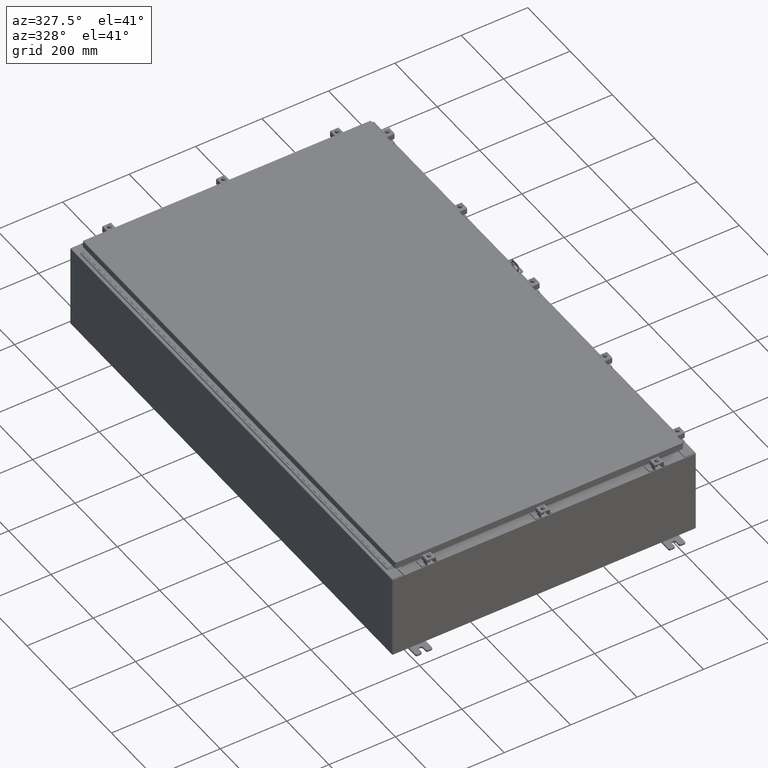
[diagram: clean part render]
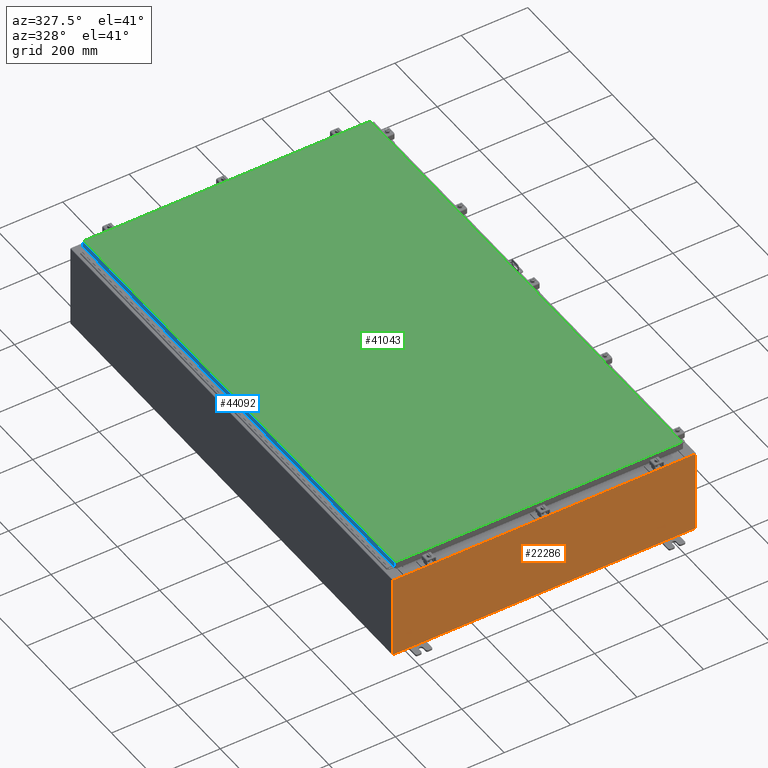
[diagram: same view with three faces highlighted in distinct colors, each labeled with its STEP entity id]
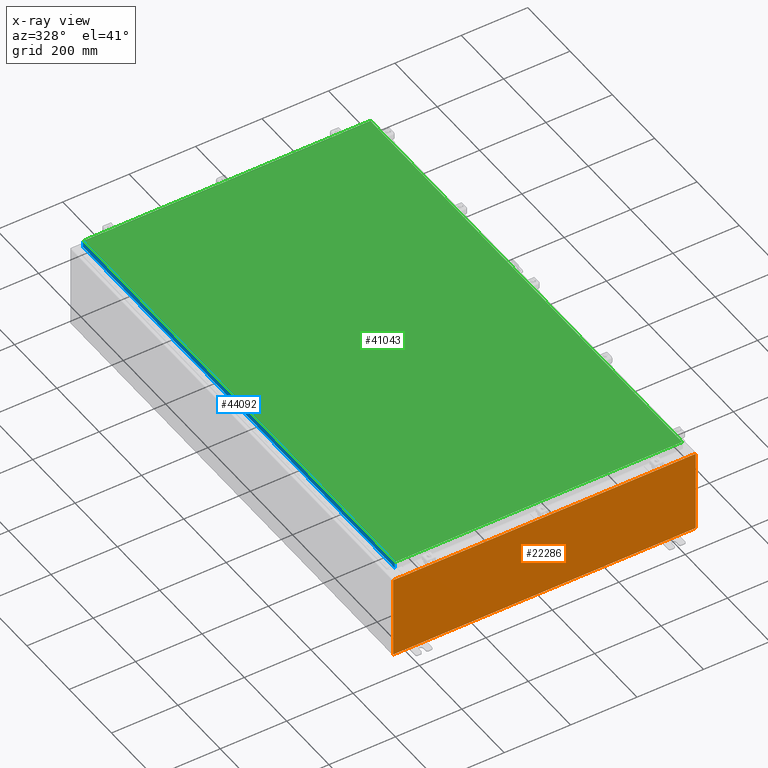
[diagram: x-ray of the same camera — body ghosted, the three highlighted faces saturated]
A machine part, auxiliary view with three faces highlighted in distinct colors.
The next image is the same camera in x-ray (body ghosted, the three faces saturated) — at least one of them is partly hidden behind the body in this view.
Their STEP definitions:

[orange] entity #22286 — the highlighted planar face has unit normal (-0, 1, -0).
#27 = EDGE_CURVE ( 'NONE', #39664, #47961, #15742, .T. ) ;
#296 = DIRECTION ( 'NONE',  ( 0.0000000000000000000, -0.0000000000000000000, -1.000000000000000000 ) ) ;
#1104 = LINE ( 'NONE', #21513, #12871 ) ;
#1739 = VERTEX_POINT ( 'NONE', #41569 ) ;
#2087 = CARTESIAN_POINT ( 'NONE',  ( 16.67455000000000000, 0.0000000000000000000, 4.874950000000000100 ) ) ;
#2250 = EDGE_CURVE ( 'NONE', #1739, #56314, #41796, .T. ) ;
#3299 = VECTOR ( 'NONE', #32926, 39.37007874015748100 ) ;
#3534 = EDGE_CURVE ( 'NONE', #35912, #47961, #20904, .T. ) ;
#3721 = EDGE_LOOP ( 'NONE', ( #26451, #14391, #39860, #30710, #6435, #29382, #43601, #13909, #37355, #16386, #18809, #43433 ) ) ;
#3862 = DIRECTION ( 'NONE',  ( 0.0000000000000000000, 0.0000000000000000000, -1.000000000000000000 ) ) ;
#5585 = VECTOR ( 'NONE', #42357, 39.37007874015748100 ) ;
#5997 = DIRECTION ( 'NONE',  ( 0.0000000000000000000, 0.0000000000000000000, 1.000000000000000000 ) ) ;
#6210 = DIRECTION ( 'NONE',  ( -0.0000000000000000000, 1.000000000000000000, -0.0000000000000000000 ) ) ;
#6435 = ORIENTED_EDGE ( 'NONE', *, *, #3534, .F. ) ;
#6921 = CARTESIAN_POINT ( 'NONE',  ( -16.67455000000000000, 0.0000000000000000000, 4.874950000000000100 ) ) ;
#7362 = AXIS2_PLACEMENT_3D ( 'NONE', #22527, #57426, #27576 ) ;
#7463 = CARTESIAN_POINT ( 'NONE',  ( -16.63720000000000400, -7.171100983368691200E-016, 4.912300000000000100 ) ) ;
#8291 = CARTESIAN_POINT ( 'NONE',  ( -16.67455000000000000, 0.0000000000000000000, 4.925300000000000000 ) ) ;
#8879 = CARTESIAN_POINT ( 'NONE',  ( -16.67455000000000000, -0.0000000000000000000, 0.0000000000000000000 ) ) ;
#12331 = DIRECTION ( 'NONE',  ( 0.0000000000000000000, -1.000000000000000000, 0.0000000000000000000 ) ) ;
#12633 = VERTEX_POINT ( 'NONE', #2087 ) ;
#12871 = VECTOR ( 'NONE', #26562, 39.37007874015748100 ) ;
#13064 = VERTEX_POINT ( 'NONE', #8291 ) ;
#13909 = ORIENTED_EDGE ( 'NONE', *, *, #50224, .T. ) ;
#14391 = ORIENTED_EDGE ( 'NONE', *, *, #2250, .F. ) ;
#15742 = LINE ( 'NONE', #27708, #39028 ) ;
#16386 = ORIENTED_EDGE ( 'NONE', *, *, #35598, .T. ) ;
#16598 = LINE ( 'NONE', #29686, #3299 ) ;
#16967 = VECTOR ( 'NONE', #43969, 39.37007874015748100 ) ;
#18016 = CARTESIAN_POINT ( 'NONE',  ( -17.92530000000000000, 0.0000000000000000000, 4.925300000000000000 ) ) ;
#18809 = ORIENTED_EDGE ( 'NONE', *, *, #21088, .T. ) ;
#20904 = LINE ( 'NONE', #60570, #31053 ) ;
#21088 = EDGE_CURVE ( 'NONE', #59595, #54602, #16598, .T. ) ;
#21260 = AXIS2_PLACEMENT_3D ( 'NONE', #63545, #12331, #296 ) ;
#21347 = CARTESIAN_POINT ( 'NONE',  ( 17.92530000000000000, 0.0000000000000000000, 4.925300000000000000 ) ) ;
#21513 = CARTESIAN_POINT ( 'NONE',  ( 16.67454999999957700, -0.0000000000000000000, -1.447541957108341500E-012 ) ) ;
#22286 = ADVANCED_FACE ( 'NONE', ( #59238 ), #35460, .F. ) ;
#22527 = CARTESIAN_POINT ( 'NONE',  ( 16.65587500000000200, 0.0000000000000000000, 4.874950000000000100 ) ) ;
#26451 = ORIENTED_EDGE ( 'NONE', *, *, #54640, .F. ) ;
#26562 = DIRECTION ( 'NONE',  ( -8.681145560800009800E-014, 0.0000000000000000000, -1.000000000000000000 ) ) ;
#26755 = LINE ( 'NONE', #8879, #51669 ) ;
#27252 = DIRECTION ( 'NONE',  ( 1.000000000000000000, 0.0000000000000000000, 0.0000000000000000000 ) ) ;
#27576 = DIRECTION ( 'NONE',  ( 0.0000000000000000000, 0.0000000000000000000, -1.000000000000000000 ) ) ;
#27708 = CARTESIAN_POINT ( 'NONE',  ( -16.63720000000000400, -7.171100983368691200E-016, 4.912300000000000100 ) ) ;
#27995 = VERTEX_POINT ( 'NONE', #39672 ) ;
#28439 = VECTOR ( 'NONE', #41412, 39.37007874015748100 ) ;
#29382 = ORIENTED_EDGE ( 'NONE', *, *, #43197, .F. ) ;
#29686 = CARTESIAN_POINT ( 'NONE',  ( -17.92530000000000000, 0.0000000000000000000, 4.925300000000000000 ) ) ;
#30573 = EDGE_CURVE ( 'NONE', #27995, #12633, #1104, .T. ) ;
#30710 = ORIENTED_EDGE ( 'NONE', *, *, #27, .T. ) ;
#30884 = CARTESIAN_POINT ( 'NONE',  ( -16.63720000000000400, -0.0000000000000000000, 0.0000000000000000000 ) ) ;
#31053 = VECTOR ( 'NONE', #5997, 39.37007874015748100 ) ;
#31651 = LINE ( 'NONE', #63858, #16967 ) ;
#32926 = DIRECTION ( 'NONE',  ( -0.0000000000000000000, -0.0000000000000000000, 1.000000000000000000 ) ) ;
#33506 = CARTESIAN_POINT ( 'NONE',  ( 17.92530000000000000, 0.0000000000000000000, 4.925300000000000000 ) ) ;
#33575 = DIRECTION ( 'NONE',  ( 0.0000000000000000000, 0.0000000000000000000, 1.000000000000000000 ) ) ;
#33831 = LINE ( 'NONE', #30884, #47027 ) ;
#33856 = CARTESIAN_POINT ( 'NONE',  ( 16.63720000000000400, 0.0000000000000000000, 4.912300000000000100 ) ) ;
#34070 = AXIS2_PLACEMENT_3D ( 'NONE', #38173, #6210, #3862 ) ;
#35460 = PLANE ( 'NONE',  #21260 ) ;
#35598 = EDGE_CURVE ( 'NONE', #40281, #59595, #58536, .T. ) ;
#35912 = VERTEX_POINT ( 'NONE', #36891 ) ;
#36891 = CARTESIAN_POINT ( 'NONE',  ( 16.63720000000000400, 0.0000000000000000000, 4.874950000000000100 ) ) ;
#37355 = ORIENTED_EDGE ( 'NONE', *, *, #50863, .T. ) ;
#37907 = LINE ( 'NONE', #57130, #49544 ) ;
#38173 = CARTESIAN_POINT ( 'NONE',  ( -16.65587500000000200, 0.0000000000000000000, 4.874950000000000100 ) ) ;
#39028 = VECTOR ( 'NONE', #63077, 39.37007874015748100 ) ;
#39243 = EDGE_CURVE ( 'NONE', #54602, #13064, #31651, .T. ) ;
#39664 = VERTEX_POINT ( 'NONE', #7463 ) ;
#39672 = CARTESIAN_POINT ( 'NONE',  ( 16.67455000000000700, 0.0000000000000000000, 4.925300000000000000 ) ) ;
#39860 = ORIENTED_EDGE ( 'NONE', *, *, #61074, .F. ) ;
#40281 = VERTEX_POINT ( 'NONE', #52938 ) ;
#41412 = DIRECTION ( 'NONE',  ( 0.0000000000000000000, 0.0000000000000000000, -1.000000000000000000 ) ) ;
#41569 = CARTESIAN_POINT ( 'NONE',  ( -16.63720000000000400, -0.0000000000000000000, 4.874950000000000100 ) ) ;
#41796 = CIRCLE ( 'NONE', #34070, 0.01867499999999949400 ) ;
#42357 = DIRECTION ( 'NONE',  ( -1.000000000000000000, -0.0000000000000000000, -0.0000000000000000000 ) ) ;
#43197 = EDGE_CURVE ( 'NONE', #12633, #35912, #52717, .T. ) ;
#43215 = LINE ( 'NONE', #21347, #28439 ) ;
#43433 = ORIENTED_EDGE ( 'NONE', *, *, #39243, .T. ) ;
#43601 = ORIENTED_EDGE ( 'NONE', *, *, #30573, .F. ) ;
#43969 = DIRECTION ( 'NONE',  ( 1.000000000000000000, 0.0000000000000000000, 0.0000000000000000000 ) ) ;
#47027 = VECTOR ( 'NONE', #60783, 39.37007874015748100 ) ;
#47961 = VERTEX_POINT ( 'NONE', #33856 ) ;
#49544 = VECTOR ( 'NONE', #27252, 39.37007874015748100 ) ;
#50224 = EDGE_CURVE ( 'NONE', #27995, #55244, #37907, .T. ) ;
#50863 = EDGE_CURVE ( 'NONE', #55244, #40281, #43215, .T. ) ;
#51669 = VECTOR ( 'NONE', #33575, 39.37007874015748100 ) ;
#52717 = CIRCLE ( 'NONE', #7362, 0.01867499999999949400 ) ;
#52938 = CARTESIAN_POINT ( 'NONE',  ( 17.92530000000000000, 0.0000000000000000000, -4.925300000000000000 ) ) ;
#54602 = VERTEX_POINT ( 'NONE', #18016 ) ;
#54640 = EDGE_CURVE ( 'NONE', #56314, #13064, #26755, .T. ) ;
#55244 = VERTEX_POINT ( 'NONE', #33506 ) ;
#56314 = VERTEX_POINT ( 'NONE', #6921 ) ;
#57130 = CARTESIAN_POINT ( 'NONE',  ( -17.92530000000000000, 0.0000000000000000000, 4.925300000000000000 ) ) ;
#57221 = CARTESIAN_POINT ( 'NONE',  ( -17.92530000000000000, 0.0000000000000000000, -4.925300000000000000 ) ) ;
#57426 = DIRECTION ( 'NONE',  ( -0.0000000000000000000, 1.000000000000000000, -0.0000000000000000000 ) ) ;
#58536 = LINE ( 'NONE', #57221, #5585 ) ;
#59238 = FACE_OUTER_BOUND ( 'NONE', #3721, .T. ) ;
#59595 = VERTEX_POINT ( 'NONE', #60774 ) ;
#60570 = CARTESIAN_POINT ( 'NONE',  ( 16.63720000000000400, 0.0000000000000000000, 0.0000000000000000000 ) ) ;
#60774 = CARTESIAN_POINT ( 'NONE',  ( -17.92530000000000000, 0.0000000000000000000, -4.925300000000000000 ) ) ;
#60783 = DIRECTION ( 'NONE',  ( 0.0000000000000000000, 0.0000000000000000000, -1.000000000000000000 ) ) ;
#61074 = EDGE_CURVE ( 'NONE', #39664, #1739, #33831, .T. ) ;
#63077 = DIRECTION ( 'NONE',  ( 1.000000000000000000, 0.0000000000000000000, 0.0000000000000000000 ) ) ;
#63545 = CARTESIAN_POINT ( 'NONE',  ( 0.0000000000000000000, 0.0000000000000000000, 0.0000000000000000000 ) ) ;
#63858 = CARTESIAN_POINT ( 'NONE',  ( -17.92530000000000000, 0.0000000000000000000, 4.925300000000000000 ) ) ;

[blue] entity #44092 — the highlighted planar face has unit normal (1, -0, -0).
#521 = DIRECTION ( 'NONE',  ( 1.000000000000000000, -7.511783855542035400E-017, -3.034122441942816500E-015 ) ) ;
#1052 = LINE ( 'NONE', #40313, #52429 ) ;
#2763 = VERTEX_POINT ( 'NONE', #46255 ) ;
#10112 = ORIENTED_EDGE ( 'NONE', *, *, #37260, .T. ) ;
#10839 = DIRECTION ( 'NONE',  ( -3.034122441942816100E-015, 6.982962677686265900E-015, -1.000000000000000000 ) ) ;
#15750 = DIRECTION ( 'NONE',  ( -7.511783855542057500E-017, -1.000000000000000000, -7.511783855542072300E-017 ) ) ;
#17218 = ORIENTED_EDGE ( 'NONE', *, *, #54808, .F. ) ;
#24003 = CARTESIAN_POINT ( 'NONE',  ( -17.07799999999999600, 29.00515786437626500, -0.7949999999999926000 ) ) ;
#25645 = AXIS2_PLACEMENT_3D ( 'NONE', #35068, #521, #35295 ) ;
#26287 = LINE ( 'NONE', #26844, #29437 ) ;
#26844 = CARTESIAN_POINT ( 'NONE',  ( -17.07799999999999600, 29.00515786437626500, 2.546194915468487600E-013 ) ) ;
#29437 = VECTOR ( 'NONE', #61747, 39.37007874015748100 ) ;
#30256 = PLANE ( 'NONE',  #25645 ) ;
#30265 = DIRECTION ( 'NONE',  ( 7.511783855542072300E-017, 1.000000000000000000, 1.220664876525586700E-016 ) ) ;
#35068 = CARTESIAN_POINT ( 'NONE',  ( -17.07799999999999600, 1.282862446849468500E-015, 5.207755671951099000E-014 ) ) ;
#35295 = DIRECTION ( 'NONE',  ( -3.034122441942816500E-015, 0.0000000000000000000, -1.000000000000000000 ) ) ;
#35771 = EDGE_CURVE ( 'NONE', #37639, #63141, #59271, .T. ) ;
#36105 = ORIENTED_EDGE ( 'NONE', *, *, #38102, .F. ) ;
#37260 = EDGE_CURVE ( 'NONE', #2763, #58213, #26287, .T. ) ;
#37639 = VERTEX_POINT ( 'NONE', #40106 ) ;
#38102 = EDGE_CURVE ( 'NONE', #2763, #37639, #38736, .T. ) ;
#38732 = CARTESIAN_POINT ( 'NONE',  ( -17.07800000000000300, -29.00515786437626200, -0.7949999999999996000 ) ) ;
#38736 = LINE ( 'NONE', #55269, #63658 ) ;
#39379 = FACE_OUTER_BOUND ( 'NONE', #46286, .T. ) ;
#40106 = CARTESIAN_POINT ( 'NONE',  ( -17.07799999999999900, -29.00515786437626500, -0.08769999999999787700 ) ) ;
#40313 = CARTESIAN_POINT ( 'NONE',  ( -17.07800000000000300, -29.09400000000000100, -0.7949999999999997100 ) ) ;
#42804 = ORIENTED_EDGE ( 'NONE', *, *, #35771, .F. ) ;
#44092 = ADVANCED_FACE ( 'NONE', ( #39379 ), #30256, .F. ) ;
#46255 = CARTESIAN_POINT ( 'NONE',  ( -17.07799999999999600, 29.00515786437626500, -0.08769999999999567000 ) ) ;
#46286 = EDGE_LOOP ( 'NONE', ( #36105, #10112, #17218, #42804 ) ) ;
#50560 = CARTESIAN_POINT ( 'NONE',  ( -17.07799999999999900, -29.00515786437626500, -0.07469999999999976700 ) ) ;
#52429 = VECTOR ( 'NONE', #30265, 39.37007874015748100 ) ;
#54808 = EDGE_CURVE ( 'NONE', #63141, #58213, #1052, .T. ) ;
#55269 = CARTESIAN_POINT ( 'NONE',  ( -17.07799999999999900, -29.09400000000000100, -0.08770000000000004200 ) ) ;
#57719 = VECTOR ( 'NONE', #10839, 39.37007874015748100 ) ;
#58213 = VERTEX_POINT ( 'NONE', #24003 ) ;
#59271 = LINE ( 'NONE', #50560, #57719 ) ;
#61747 = DIRECTION ( 'NONE',  ( -3.034122441942816100E-015, 6.982962677686265900E-015, -1.000000000000000000 ) ) ;
#63141 = VERTEX_POINT ( 'NONE', #38732 ) ;
#63658 = VECTOR ( 'NONE', #15750, 39.37007874015748100 ) ;

[green] entity #41043 — the highlighted planar face has unit normal (0, 0, -1).
#2502 = CARTESIAN_POINT ( 'NONE',  ( 16.99030000000000500, -29.00630000000000000, -2.048885995248197400E-016 ) ) ;
#3833 = VERTEX_POINT ( 'NONE', #40585 ) ;
#7938 = EDGE_LOOP ( 'NONE', ( #63026, #57272, #45511, #12759 ) ) ;
#9406 = CARTESIAN_POINT ( 'NONE',  ( 0.0000000000000000000, 0.0000000000000000000, 0.0000000000000000000 ) ) ;
#12759 = ORIENTED_EDGE ( 'NONE', *, *, #43566, .T. ) ;
#14475 = DIRECTION ( 'NONE',  ( -1.000000000000000000, 0.0000000000000000000, -0.0000000000000000000 ) ) ;
#17794 = DIRECTION ( 'NONE',  ( 1.000000000000000000, -0.0000000000000000000, -0.0000000000000000000 ) ) ;
#19210 = VECTOR ( 'NONE', #35363, 39.37007874015748100 ) ;
#19620 = DIRECTION ( 'NONE',  ( -1.000000000000000000, -0.0000000000000000000, -0.0000000000000000000 ) ) ;
#19782 = LINE ( 'NONE', #37561, #57965 ) ;
#21416 = CARTESIAN_POINT ( 'NONE',  ( 16.99030000000000500, 29.00630000000000300, 1.946441695485787500E-015 ) ) ;
#23723 = LINE ( 'NONE', #2502, #38607 ) ;
#25311 = CARTESIAN_POINT ( 'NONE',  ( -16.99029999999998400, 29.00630000000000000, 4.166068190338001500E-015 ) ) ;
#26460 = VERTEX_POINT ( 'NONE', #26602 ) ;
#26602 = CARTESIAN_POINT ( 'NONE',  ( 16.99030000000000500, -29.00630000000000000, -2.048885995248197400E-016 ) ) ;
#28466 = AXIS2_PLACEMENT_3D ( 'NONE', #9406, #44087, #14475 ) ;
#29142 = PLANE ( 'NONE',  #28466 ) ;
#29595 = FACE_OUTER_BOUND ( 'NONE', #7938, .T. ) ;
#33976 = LINE ( 'NONE', #25311, #19210 ) ;
#35363 = DIRECTION ( 'NONE',  ( 0.0000000000000000000, -1.000000000000000000, 0.0000000000000000000 ) ) ;
#37561 = CARTESIAN_POINT ( 'NONE',  ( -16.99029999999999800, -29.00630000000000300, 1.946441695485787500E-015 ) ) ;
#38607 = VECTOR ( 'NONE', #61952, 39.37007874015748100 ) ;
#39894 = CARTESIAN_POINT ( 'NONE',  ( -16.99029999999998400, 29.00630000000000000, 4.166068190338001500E-015 ) ) ;
#40585 = CARTESIAN_POINT ( 'NONE',  ( -16.99029999999999800, -29.00630000000000300, 1.946441695485787500E-015 ) ) ;
#41043 = ADVANCED_FACE ( 'NONE', ( #29595 ), #29142, .F. ) ;
#41364 = VERTEX_POINT ( 'NONE', #21416 ) ;
#43566 = EDGE_CURVE ( 'NONE', #54768, #3833, #33976, .T. ) ;
#44087 = DIRECTION ( 'NONE',  ( 0.0000000000000000000, 0.0000000000000000000, -1.000000000000000000 ) ) ;
#44367 = CARTESIAN_POINT ( 'NONE',  ( 16.99030000000000500, 29.00630000000000300, 1.946441695485787500E-015 ) ) ;
#45511 = ORIENTED_EDGE ( 'NONE', *, *, #51266, .T. ) ;
#49425 = LINE ( 'NONE', #44367, #61173 ) ;
#50998 = EDGE_CURVE ( 'NONE', #26460, #41364, #23723, .T. ) ;
#51266 = EDGE_CURVE ( 'NONE', #41364, #54768, #49425, .T. ) ;
#54545 = EDGE_CURVE ( 'NONE', #3833, #26460, #19782, .T. ) ;
#54768 = VERTEX_POINT ( 'NONE', #39894 ) ;
#57272 = ORIENTED_EDGE ( 'NONE', *, *, #50998, .T. ) ;
#57965 = VECTOR ( 'NONE', #17794, 39.37007874015748100 ) ;
#61173 = VECTOR ( 'NONE', #19620, 39.37007874015748100 ) ;
#61952 = DIRECTION ( 'NONE',  ( 0.0000000000000000000, 1.000000000000000000, 0.0000000000000000000 ) ) ;
#63026 = ORIENTED_EDGE ( 'NONE', *, *, #54545, .T. ) ;